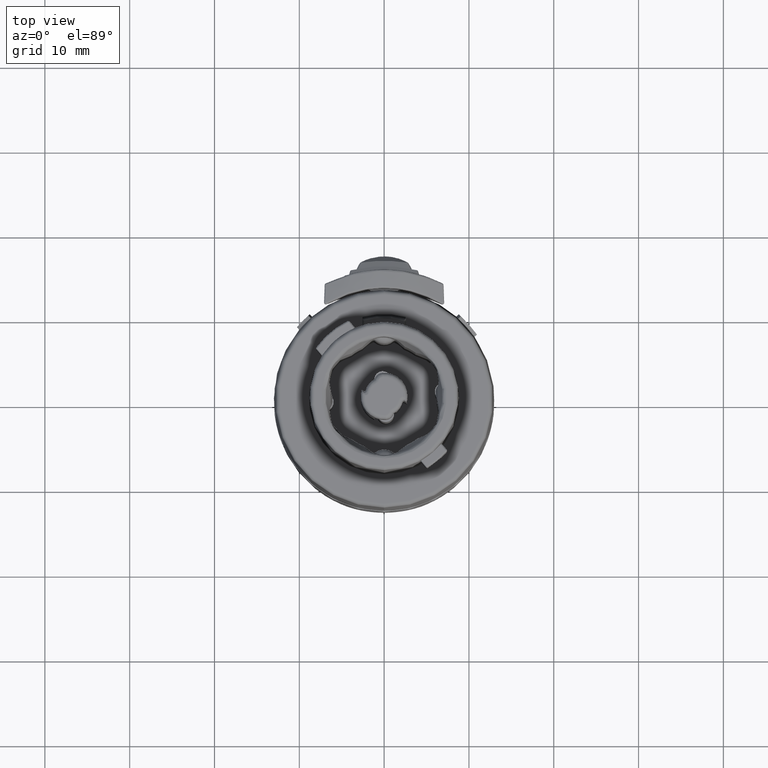
[diagram: clean part render]
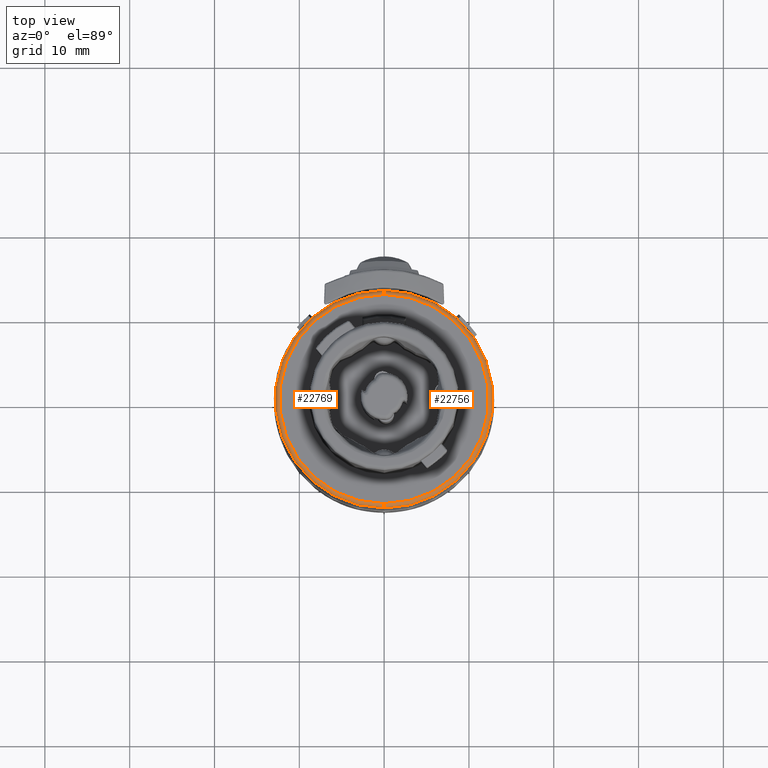
[diagram: same view with one multi-face feature highlighted, each face labeled with its STEP entity id]
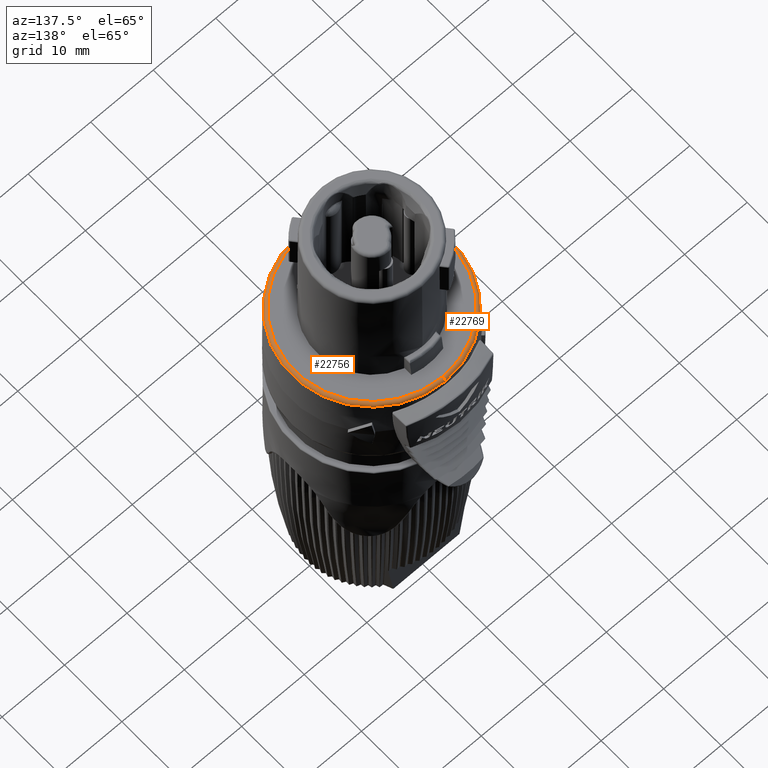
[diagram: same view with one multi-face feature highlighted, each face labeled with its STEP entity id]
A machine part, top view. The highlighted faces form ONE feature: a constant-radius fillet chain: 2 tangent blend faces with common blend radius 0.5 mm. The faces share edges in the B-rep.
A second angle (auxiliary view) of the same feature is appended — it is thin or edge-on in the first view.
Their STEP definitions:
[1] entity #22769 (Torus):
#3592=CARTESIAN_POINT('',(0.E0,1.232962011355E1,1.3E1));
#3593=DIRECTION('',(1.E0,0.E0,0.E0));
#3594=DIRECTION('',(0.E0,9.996573249756E-1,2.617694830787E-2));
#3595=AXIS2_PLACEMENT_3D('',#3592,#3593,#3594);
#3597=CARTESIAN_POINT('',(0.E0,-1.232962011355E1,1.3E1));
#3598=DIRECTION('',(-1.E0,0.E0,0.E0));
#3599=DIRECTION('',(0.E0,-9.996573249756E-1,2.617694830787E-2));
#3600=AXIS2_PLACEMENT_3D('',#3597,#3598,#3599);
#3602=CARTESIAN_POINT('',(0.E0,0.E0,1.301308847415E1));
#3603=DIRECTION('',(0.E0,0.E0,1.E0));
#3604=DIRECTION('',(0.E0,1.E0,0.E0));
#3605=AXIS2_PLACEMENT_3D('',#3602,#3603,#3604);
#3607=CARTESIAN_POINT('',(0.E0,0.E0,1.35E1));
#3608=DIRECTION('',(0.E0,0.E0,1.E0));
#3609=DIRECTION('',(0.E0,1.E0,0.E0));
#3610=AXIS2_PLACEMENT_3D('',#3607,#3608,#3609);
#16085=CARTESIAN_POINT('',(0.E0,1.282944877604E1,1.301308847415E1));
#16086=CARTESIAN_POINT('',(0.E0,1.232962011355E1,1.35E1));
#16087=VERTEX_POINT('',#16085);
#16088=VERTEX_POINT('',#16086);
#16090=CARTESIAN_POINT('',(0.E0,-1.282944877604E1,1.301308847415E1));
#16092=VERTEX_POINT('',#16090);
#16093=CARTESIAN_POINT('',(0.E0,-1.232962011355E1,1.35E1));
#16094=VERTEX_POINT('',#16093);
#22757=CARTESIAN_POINT('',(0.E0,0.E0,1.3E1));
#22758=DIRECTION('',(0.E0,0.E0,-1.E0));
#22759=DIRECTION('',(0.E0,-1.E0,0.E0));
#22760=AXIS2_PLACEMENT_3D('',#22757,#22758,#22759);
#22761=TOROIDAL_SURFACE('',#22760,1.232962011355E1,5.E-1);
#22762=ORIENTED_EDGE('',*,*,#22747,.T.);
#22764=ORIENTED_EDGE('',*,*,#22763,.T.);
#22765=ORIENTED_EDGE('',*,*,#22750,.F.);
#22766=ORIENTED_EDGE('',*,*,#22320,.F.);
#22767=EDGE_LOOP('',(#22762,#22764,#22765,#22766));
#22768=FACE_OUTER_BOUND('',#22767,.F.);
#22769=ADVANCED_FACE('',(#22768),#22761,.T.);
#3596=CIRCLE('',#3595,5.E-1);
#3601=CIRCLE('',#3600,5.E-1);
#3606=CIRCLE('',#3605,1.282944877604E1);
#3611=CIRCLE('',#3610,1.232962011355E1);
#22320=EDGE_CURVE('',#16087,#16092,#3606,.T.);
#22747=EDGE_CURVE('',#16087,#16088,#3596,.T.);
#22750=EDGE_CURVE('',#16092,#16094,#3601,.T.);
#22763=EDGE_CURVE('',#16088,#16094,#3611,.T.);
[2] entity #22756 (Torus):
#3587=CARTESIAN_POINT('',(0.E0,0.E0,1.301308847415E1));
#3588=DIRECTION('',(0.E0,0.E0,-1.E0));
#3589=DIRECTION('',(0.E0,1.E0,0.E0));
#3590=AXIS2_PLACEMENT_3D('',#3587,#3588,#3589);
#3592=CARTESIAN_POINT('',(0.E0,1.232962011355E1,1.3E1));
#3593=DIRECTION('',(1.E0,0.E0,0.E0));
#3594=DIRECTION('',(0.E0,9.996573249756E-1,2.617694830787E-2));
#3595=AXIS2_PLACEMENT_3D('',#3592,#3593,#3594);
#3597=CARTESIAN_POINT('',(0.E0,-1.232962011355E1,1.3E1));
#3598=DIRECTION('',(-1.E0,0.E0,0.E0));
#3599=DIRECTION('',(0.E0,-9.996573249756E-1,2.617694830787E-2));
#3600=AXIS2_PLACEMENT_3D('',#3597,#3598,#3599);
#3612=CARTESIAN_POINT('',(0.E0,0.E0,1.35E1));
#3613=DIRECTION('',(0.E0,0.E0,-1.E0));
#3614=DIRECTION('',(0.E0,1.E0,0.E0));
#3615=AXIS2_PLACEMENT_3D('',#3612,#3613,#3614);
#16085=CARTESIAN_POINT('',(0.E0,1.282944877604E1,1.301308847415E1));
#16086=CARTESIAN_POINT('',(0.E0,1.232962011355E1,1.35E1));
#16087=VERTEX_POINT('',#16085);
#16088=VERTEX_POINT('',#16086);
#16090=CARTESIAN_POINT('',(0.E0,-1.282944877604E1,1.301308847415E1));
#16092=VERTEX_POINT('',#16090);
#16093=CARTESIAN_POINT('',(0.E0,-1.232962011355E1,1.35E1));
#16094=VERTEX_POINT('',#16093);
#22742=CARTESIAN_POINT('',(0.E0,0.E0,1.3E1));
#22743=DIRECTION('',(0.E0,0.E0,-1.E0));
#22744=DIRECTION('',(0.E0,-1.E0,0.E0));
#22745=AXIS2_PLACEMENT_3D('',#22742,#22743,#22744);
#22746=TOROIDAL_SURFACE('',#22745,1.232962011355E1,5.E-1);
#22748=ORIENTED_EDGE('',*,*,#22747,.F.);
#22749=ORIENTED_EDGE('',*,*,#22641,.T.);
#22751=ORIENTED_EDGE('',*,*,#22750,.T.);
#22753=ORIENTED_EDGE('',*,*,#22752,.F.);
#22754=EDGE_LOOP('',(#22748,#22749,#22751,#22753));
#22755=FACE_OUTER_BOUND('',#22754,.F.);
#22756=ADVANCED_FACE('',(#22755),#22746,.T.);
#3591=CIRCLE('',#3590,1.282944877604E1);
#3596=CIRCLE('',#3595,5.E-1);
#3601=CIRCLE('',#3600,5.E-1);
#3616=CIRCLE('',#3615,1.232962011355E1);
#22641=EDGE_CURVE('',#16087,#16092,#3591,.T.);
#22747=EDGE_CURVE('',#16087,#16088,#3596,.T.);
#22750=EDGE_CURVE('',#16092,#16094,#3601,.T.);
#22752=EDGE_CURVE('',#16088,#16094,#3616,.T.);